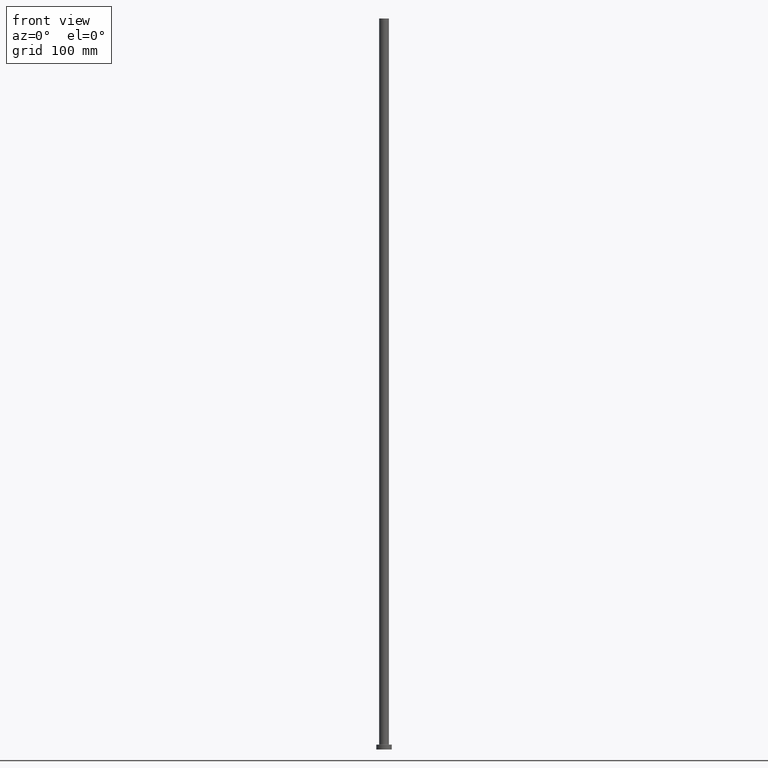
[diagram: clean part render]
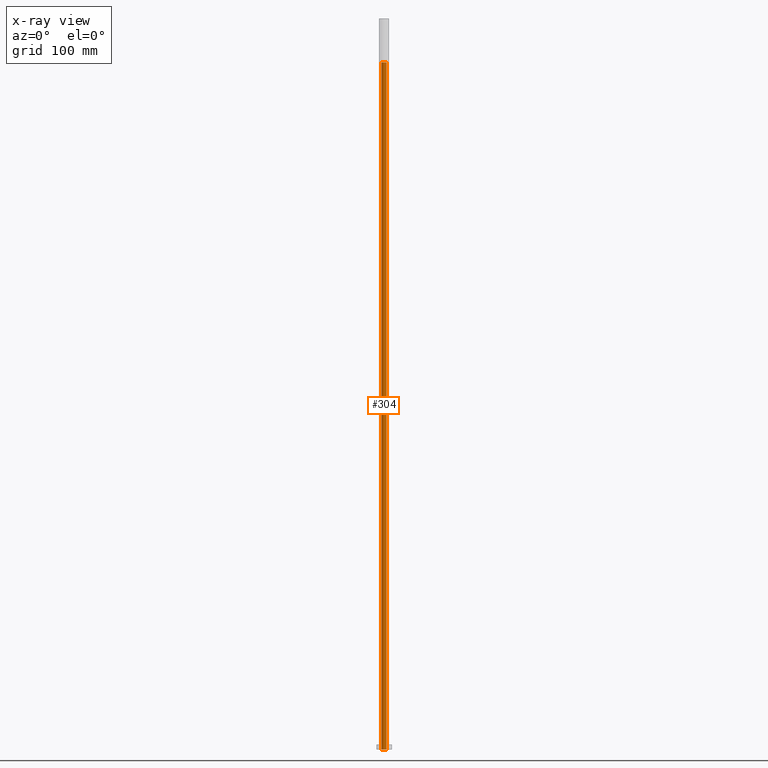
[diagram: x-ray — body ghosted, one internal face saturated and labeled with its STEP entity id]
A machine part, front view, then the same camera in x-ray: the body is ghosted and one INTERNAL B-rep face — a face not visible from any outside direction — is saturated and labeled: STEP entity #304.
In plain terms, the highlighted cylindrical surface (edge-blend (fillet) strip) has radius 2.65 mm, axis along (0, 0, -1).
Its self-contained STEP definition (entity closure, byte-faithful):
#12 = DIRECTION ( 'NONE',  ( 0.000000000000000000, 0.000000000000000000, -1.000000000000000000 ) ) ;
#50 = AXIS2_PLACEMENT_3D ( 'NONE', #113, #119, #160 ) ;
#52 = VERTEX_POINT ( 'NONE', #312 ) ;
#56 = CARTESIAN_POINT ( 'NONE',  ( 0.000000000000000000, 0.000000000000000000, 705.0000000000000000 ) ) ;
#69 = DIRECTION ( 'NONE',  ( -1.000000000000000000, 0.000000000000000000, 0.000000000000000000 ) ) ;
#79 = ORIENTED_EDGE ( 'NONE', *, *, #154, .T. ) ;
#80 = VECTOR ( 'NONE', #109, 1000.000000000000000 ) ;
#84 = CARTESIAN_POINT ( 'NONE',  ( 2.649999999999999911, 3.245314017740485962E-16, 705.0000000000000000 ) ) ;
#87 = ORIENTED_EDGE ( 'NONE', *, *, #260, .T. ) ;
#109 = DIRECTION ( 'NONE',  ( 0.000000000000000000, 0.000000000000000000, -1.000000000000000000 ) ) ;
#113 = CARTESIAN_POINT ( 'NONE',  ( 0.000000000000000000, 0.000000000000000000, 0.000000000000000000 ) ) ;
#119 = DIRECTION ( 'NONE',  ( -0.000000000000000000, -0.000000000000000000, -1.000000000000000000 ) ) ;
#132 = CYLINDRICAL_SURFACE ( 'NONE', #269, 2.649999999999999911 ) ;
#154 = EDGE_CURVE ( 'NONE', #217, #356, #156, .T. ) ;
#156 = LINE ( 'NONE', #432, #225 ) ;
#160 = DIRECTION ( 'NONE',  ( 1.000000000000000000, 0.000000000000000000, 0.000000000000000000 ) ) ;
#183 = EDGE_CURVE ( 'NONE', #356, #52, #237, .T. ) ;
#186 = VERTEX_POINT ( 'NONE', #443 ) ;
#198 = DIRECTION ( 'NONE',  ( 1.000000000000000000, 0.000000000000000000, 0.000000000000000000 ) ) ;
#217 = VERTEX_POINT ( 'NONE', #84 ) ;
#225 = VECTOR ( 'NONE', #12, 1000.000000000000000 ) ;
#237 = CIRCLE ( 'NONE', #50, 2.649999999999999911 ) ;
#260 = EDGE_CURVE ( 'NONE', #186, #217, #371, .T. ) ;
#269 = AXIS2_PLACEMENT_3D ( 'NONE', #278, #410, #69 ) ;
#274 = DIRECTION ( 'NONE',  ( 0.000000000000000000, 0.000000000000000000, 1.000000000000000000 ) ) ;
#278 = CARTESIAN_POINT ( 'NONE',  ( 0.000000000000000000, 0.000000000000000000, 712.4953318805775098 ) ) ;
#289 = CARTESIAN_POINT ( 'NONE',  ( -2.649999999999999911, 0.000000000000000000, 712.4953318805775098 ) ) ;
#304 = ADVANCED_FACE ( 'NONE', ( #446 ), #132, .F. ) ;
#312 = CARTESIAN_POINT ( 'NONE',  ( -2.649999999999999911, 0.000000000000000000, 0.000000000000000000 ) ) ;
#319 = AXIS2_PLACEMENT_3D ( 'NONE', #56, #274, #198 ) ;
#326 = CARTESIAN_POINT ( 'NONE',  ( 2.649999999999999911, 3.245314017740485962E-16, 0.000000000000000000 ) ) ;
#337 = EDGE_CURVE ( 'NONE', #186, #52, #392, .T. ) ;
#356 = VERTEX_POINT ( 'NONE', #326 ) ;
#371 = CIRCLE ( 'NONE', #319, 2.649999999999999911 ) ;
#392 = LINE ( 'NONE', #289, #80 ) ;
#401 = EDGE_LOOP ( 'NONE', ( #87, #79, #433, #407 ) ) ;
#407 = ORIENTED_EDGE ( 'NONE', *, *, #337, .F. ) ;
#410 = DIRECTION ( 'NONE',  ( 0.000000000000000000, 0.000000000000000000, -1.000000000000000000 ) ) ;
#432 = CARTESIAN_POINT ( 'NONE',  ( 2.649999999999999911, 3.245314017740485962E-16, 712.4953318805775098 ) ) ;
#433 = ORIENTED_EDGE ( 'NONE', *, *, #183, .T. ) ;
#443 = CARTESIAN_POINT ( 'NONE',  ( -2.649999999999999911, 0.000000000000000000, 705.0000000000000000 ) ) ;
#446 = FACE_OUTER_BOUND ( 'NONE', #401, .T. ) ;